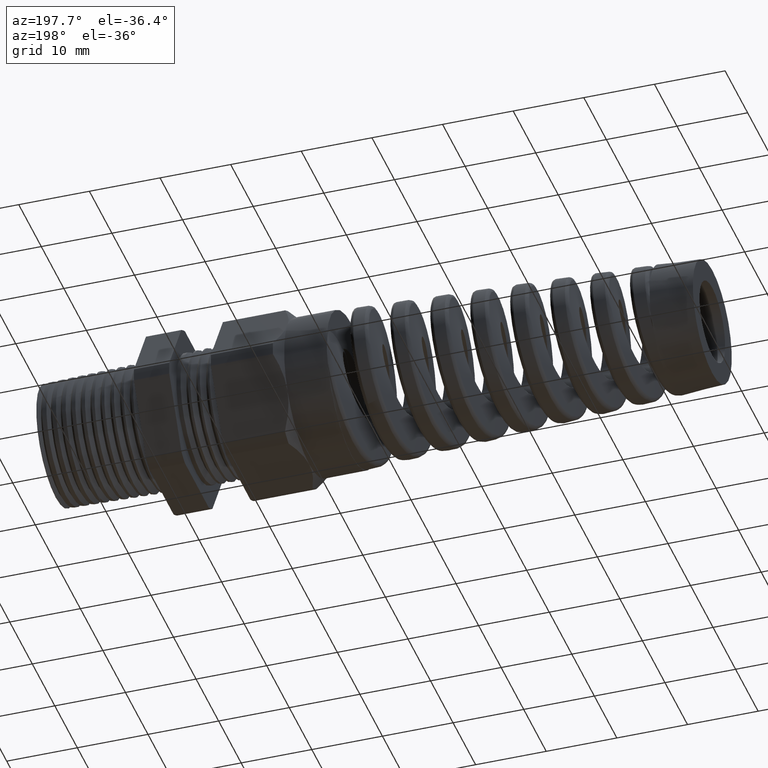
[diagram: clean part render]
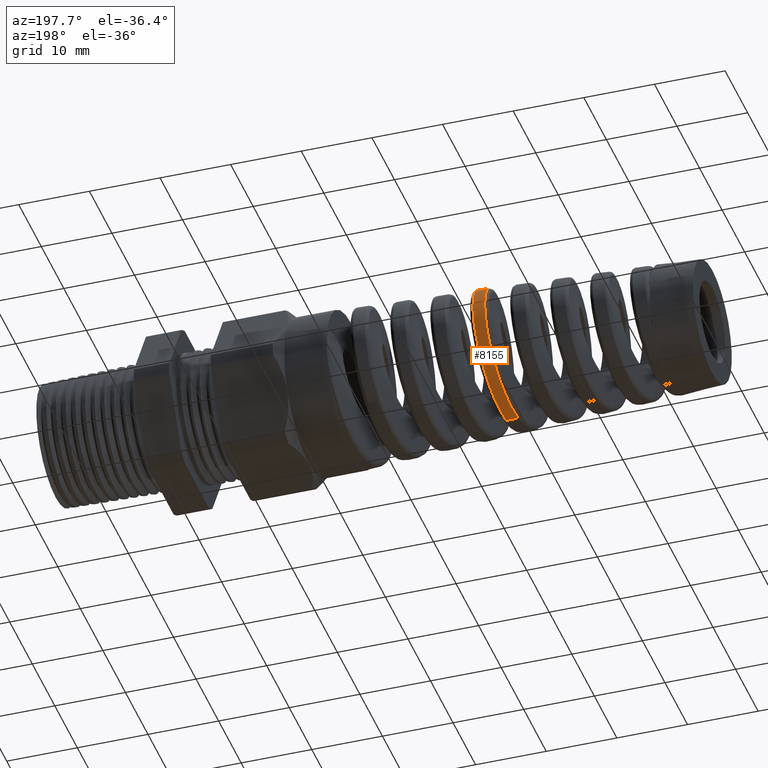
[diagram: same view with one face highlighted and labeled with its STEP entity id]
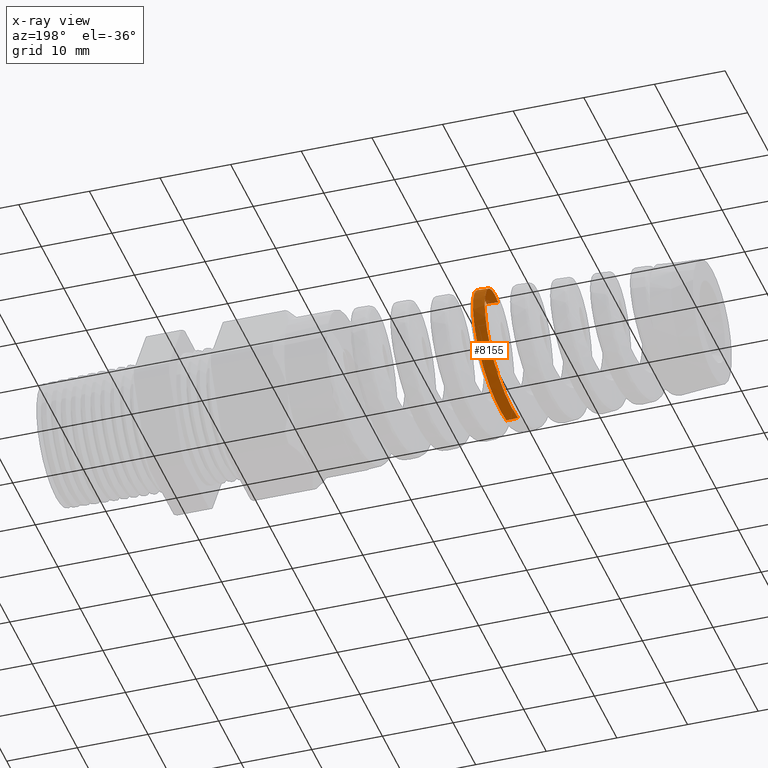
[diagram: x-ray of the same camera — body ghosted, the highlighted face saturated]
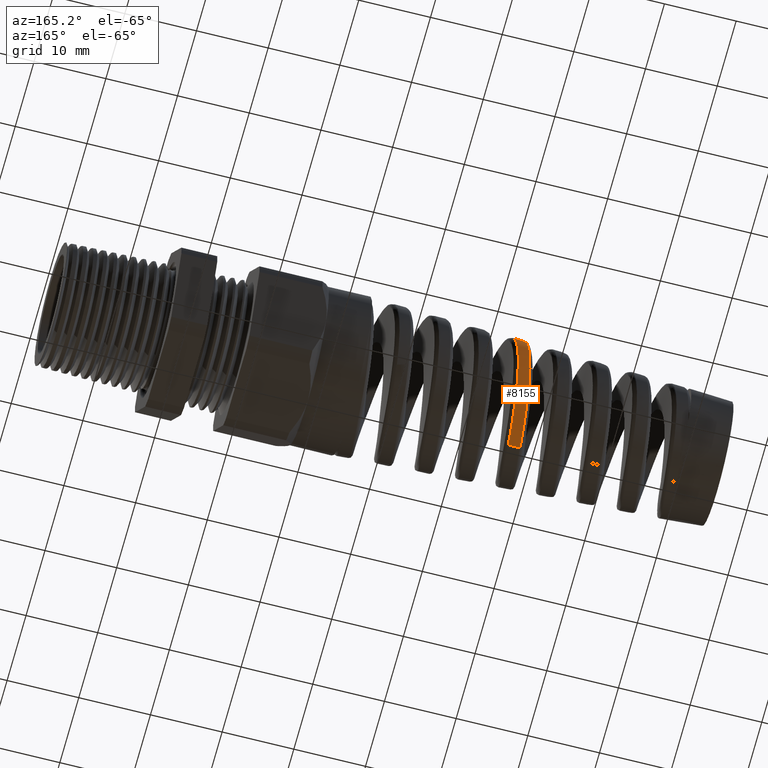
[diagram: same view with one face highlighted and labeled with its STEP entity id]
A machine part, auxiliary view. The second image highlights one B-rep face of the part: STEP entity #8155.
The next image is the same camera in x-ray: the body ghosted, the highlighted face saturated — about 1% of this face is hidden behind the body in this view.
A second angle (auxiliary view) of the same face is appended — the face is thin or edge-on in the first view.
In plain terms, the highlighted conical surface has half-angle 2.5 deg.
Its self-contained STEP definition (entity closure, byte-faithful):
#7662 = VERTEX_POINT ( 'NONE', #12962 ) ;
#8096 = EDGE_LOOP ( 'NONE', ( #8142, #8201, #8174, #8198 ) ) ;
#8130 = EDGE_CURVE ( 'NONE', #8200, #8202, #13267, .T. ) ;
#8142 = ORIENTED_EDGE ( 'NONE', *, *, #8130, .T. ) ;
#8155 = ADVANCED_FACE ( 'NONE', ( #13617 ), #13616, .T. ) ;
#8169 = EDGE_CURVE ( 'NONE', #7662, #8183, #13611, .T. ) ;
#8174 = ORIENTED_EDGE ( 'NONE', *, *, #8169, .T. ) ;
#8183 = VERTEX_POINT ( 'NONE', #13669 ) ;
#8196 = EDGE_CURVE ( 'NONE', #8200, #8183, #13758, .T. ) ;
#8198 = ORIENTED_EDGE ( 'NONE', *, *, #8196, .F. ) ;
#8199 = EDGE_CURVE ( 'NONE', #8202, #7662, #13752, .T. ) ;
#8200 = VERTEX_POINT ( 'NONE', #13744 ) ;
#8201 = ORIENTED_EDGE ( 'NONE', *, *, #8199, .T. ) ;
#8202 = VERTEX_POINT ( 'NONE', #13743 ) ;
#12556 = CARTESIAN_POINT ( 'NONE',  ( -2.218711898613962200, 0.3124359404254050700, 0.2411266693216077000 ) ) ;
#12565 = CARTESIAN_POINT ( 'NONE',  ( -2.215263172761423100, 0.2873479105716942300, 0.2707559511014985800 ) ) ;
#12567 = CARTESIAN_POINT ( 'NONE',  ( -2.216420544863168600, 0.2960990013734216000, 0.2610796868643477900 ) ) ;
#12962 = CARTESIAN_POINT ( 'NONE',  ( -2.122366238921869400, 5.250120604008313200E-016, 0.3986581051634590600 ) ) ;
#13208 = CARTESIAN_POINT ( 'NONE',  ( -2.219851730294393600, 0.3200712305407065700, 0.2308058865891631800 ) ) ;
#13210 = CARTESIAN_POINT ( 'NONE',  ( -2.223270518950673800, 0.3414059891660205500, 0.1988308275697723800 ) ) ;
#13212 = CARTESIAN_POINT ( 'NONE',  ( -2.225556401840262900, 0.3535829922662756000, 0.1760925164766052300 ) ) ;
#13214 = CARTESIAN_POINT ( 'NONE',  ( -2.230172989488114600, 0.3734285792878163600, 0.1281473726980491300 ) ) ;
#13215 = CARTESIAN_POINT ( 'NONE',  ( -2.232445229152284500, 0.3808528770545344700, 0.1035755372282390300 ) ) ;
#13217 = CARTESIAN_POINT ( 'NONE',  ( -2.235870684681607200, 0.3883671020513841400, 0.06585537510675232300 ) ) ;
#13219 = CARTESIAN_POINT ( 'NONE',  ( -2.237015191084879000, 0.3902637911740106700, 0.05313720074564734500 ) ) ;
#13221 = CARTESIAN_POINT ( 'NONE',  ( -2.239320207317864900, 0.3928093032770894600, 0.02740467981639881400 ) ) ;
#13222 = CARTESIAN_POINT ( 'NONE',  ( -2.240481034165525900, 0.3934489430777743900, 0.01438612606734760700 ) ) ;
#13224 = CARTESIAN_POINT ( 'NONE',  ( -2.243924901278260300, 0.3934464186544525700, -0.02425648264394815500 ) ) ;
#13226 = CARTESIAN_POINT ( 'NONE',  ( -2.246196496278318300, 0.3909385284510031900, -0.04975822684547734400 ) ) ;
#13228 = CARTESIAN_POINT ( 'NONE',  ( -2.249638625694578800, 0.3834287661512615400, -0.08761562778099550600 ) ) ;
#13229 = CARTESIAN_POINT ( 'NONE',  ( -2.250797366523134400, 0.3802772454878912100, -0.1002287961988097000 ) ) ;
#13231 = CARTESIAN_POINT ( 'NONE',  ( -2.253109921926512700, 0.3727570641786672200, -0.1250176186215716500 ) ) ;
#13233 = CARTESIAN_POINT ( 'NONE',  ( -2.254258268636419400, 0.3684132155581785200, -0.1371361231459839700 ) ) ;
#13235 = CARTESIAN_POINT ( 'NONE',  ( -2.257693975313719300, 0.3536804365441066400, -0.1726861999414699100 ) ) ;
#13236 = CARTESIAN_POINT ( 'NONE',  ( -2.259971346800738100, 0.3416063981636977600, -0.1953200435874973000 ) ) ;
#13238 = CARTESIAN_POINT ( 'NONE',  ( -2.263440883707351400, 0.3200200152779084100, -0.2276182391991529200 ) ) ;
#13240 = CARTESIAN_POINT ( 'NONE',  ( -2.264601693206377500, 0.3122641423936046700, -0.2380589539766222500 ) ) ;
#13242 = CARTESIAN_POINT ( 'NONE',  ( -2.266902308596235200, 0.2959226838140175400, -0.2579377735332169500 ) ) ;
#13243 = CARTESIAN_POINT ( 'NONE',  ( -2.268047966912378800, 0.2873013576472269700, -0.2674311113507659700 ) ) ;
#13245 = CARTESIAN_POINT ( 'NONE',  ( -2.270339610819941200, 0.2691692943944415900, -0.2855361053792814800 ) ) ;
#13247 = CARTESIAN_POINT ( 'NONE',  ( -2.271485227636867800, 0.2596585505250034200, -0.2941478015114886200 ) ) ;
#13249 = CARTESIAN_POINT ( 'NONE',  ( -2.273787987006378900, 0.2397338205439369100, -0.3104743852225730300 ) ) ;
#13250 = CARTESIAN_POINT ( 'NONE',  ( -2.274951727439308500, 0.2292576916530790500, -0.3182279439221034100 ) ) ;
#13252 = CARTESIAN_POINT ( 'NONE',  ( -2.278421131972630900, 0.1969694435823408100, -0.3397263317183430400 ) ) ;
#13254 = CARTESIAN_POINT ( 'NONE',  ( -2.280706118899019000, 0.1743257355562871600, -0.3517577132923852000 ) ) ;
#13256 = CARTESIAN_POINT ( 'NONE',  ( -2.285305284259304700, 0.1268560249212100400, -0.3713128228626805200 ) ) ;
#13257 = CARTESIAN_POINT ( 'NONE',  ( -2.287639245232431700, 0.1017664874360006500, -0.3788551871188889400 ) ) ;
#13259 = CARTESIAN_POINT ( 'NONE',  ( -2.292244006057723400, 0.05131066851734808500, -0.3887126561070445300 ) ) ;
#13261 = CARTESIAN_POINT ( 'NONE',  ( -2.294530783158848400, 0.02579760942298315800, -0.3911412388267123700 ) ) ;
#13263 = CARTESIAN_POINT ( 'NONE',  ( -2.296845494457832300, -8.211128333806607900E-013, -0.3910401763487836900 ) ) ;
#13267 = B_SPLINE_CURVE_WITH_KNOTS ( 'NONE', 3,
 ( #13263, #13261, #13259, #13257, #13256, #13254, #13252, #13250, #13249, #13247, #13245, #13243, #13242, #13240, #13238, #13236, #13235, #13233, #13231, #13229, #13228, #13226, #13224, #13222, #13221, #13219, #13217, #13215, #13214, #13212, #13210, #13208, #12556, #12567, #12565, #14225, #14245, #14246, #14252, #14254, #14253, #14243, #14244, #14247, #14248, #14250 ),
 .UNSPECIFIED., .F., .F.,
 ( 4, 2, 2, 2, 2, 2, 2, 2, 2, 2, 2, 2, 2, 2, 2, 2, 2, 2, 2, 2, 2, 2, 4 ),
 ( 0.2317423886301105700, 0.2337317438654726300, 0.2357210991008347200, 0.2377104543361967800, 0.2387051319538778200, 0.2396998095715588400, 0.2406944871892398900, 0.2416891648069209300, 0.2436785200422829900, 0.2446731976599640400, 0.2456678752776450800, 0.2476572305130071400, 0.2486519081306881900, 0.2496465857483692300, 0.2516359409837313200, 0.2536252962190934100, 0.2546199738367744300, 0.2556146514544555000, 0.2576040066898175300, 0.2595933619251796200, 0.2615827171605417100, 0.2625773947782227800, 0.2635720723959038000 ),
 .UNSPECIFIED. ) ;
#13591 = CARTESIAN_POINT ( 'NONE',  ( -2.164548996511191300, 0.3709832320427107800, 0.1414403306292197100 ) ) ;
#13592 = CARTESIAN_POINT ( 'NONE',  ( -2.161097387118590800, 0.3559614554532285500, 0.1776431330355807400 ) ) ;
#13593 = CARTESIAN_POINT ( 'NONE',  ( -2.158833017888307300, 0.3437389990298320700, 0.2004303281206778200 ) ) ;
#13594 = CARTESIAN_POINT ( 'NONE',  ( -2.155421150154700300, 0.3222097261999222800, 0.2326530290792326900 ) ) ;
#13595 = CARTESIAN_POINT ( 'NONE',  ( -2.154281486888260000, 0.3144968492341637100, 0.2430652392613244200 ) ) ;
#13596 = CARTESIAN_POINT ( 'NONE',  ( -2.151987108750868000, 0.2979709533655828200, 0.2632145350210029500 ) ) ;
#13597 = CARTESIAN_POINT ( 'NONE',  ( -2.150833004506669700, 0.2891543894346463900, 0.2729412833474752500 ) ) ;
#13598 = CARTESIAN_POINT ( 'NONE',  ( -2.147409854960353300, 0.2616313003985985000, 0.3004665195408015000 ) ) ;
#13599 = CARTESIAN_POINT ( 'NONE',  ( -2.145152739854297300, 0.2416835904644508100, 0.3168552048883903100 ) ) ;
#13600 = CARTESIAN_POINT ( 'NONE',  ( -2.141734611335054600, 0.2093769520579503400, 0.3385027072612429300 ) ) ;
#13601 = CARTESIAN_POINT ( 'NONE',  ( -2.140584220949266000, 0.1981501468502570900, 0.3452556774505081100 ) ) ;
#13602 = CARTESIAN_POINT ( 'NONE',  ( -2.138290162028017200, 0.1751507267131043900, 0.3575848108407784200 ) ) ;
#13603 = CARTESIAN_POINT ( 'NONE',  ( -2.137151428956919100, 0.1634316601891280300, 0.3631406170651423300 ) ) ;
#13604 = CARTESIAN_POINT ( 'NONE',  ( -2.133746264330185700, 0.1276362987574071700, 0.3780335812991945100 ) ) ;
#13605 = CARTESIAN_POINT ( 'NONE',  ( -2.131490258464495900, 0.1029278562166105600, 0.3856128760355928000 ) ) ;
#13606 = CARTESIAN_POINT ( 'NONE',  ( -2.128056332226393000, 0.06456905752915700900, 0.3933589393382874200 ) ) ;
#13607 = CARTESIAN_POINT ( 'NONE',  ( -2.126907345060618800, 0.05160882729078358100, 0.3953161563706631400 ) ) ;
#13608 = CARTESIAN_POINT ( 'NONE',  ( -2.124631395905219700, 0.02581092764626215900, 0.3979338266683871100 ) ) ;
#13609 = CARTESIAN_POINT ( 'NONE',  ( -2.123498548439923400, 0.01290748208527722900, 0.3986086674622366100 ) ) ;
#13610 = CARTESIAN_POINT ( 'NONE',  ( -2.122366238921869400, 5.250120604008313200E-016, 0.3986581051634590600 ) ) ;
#13611 = B_SPLINE_CURVE_WITH_KNOTS ( 'NONE', 3,
 ( #13610, #13609, #13608, #13607, #13606, #13605, #13604, #13603, #13602, #13601, #13600, #13599, #13598, #13597, #13596, #13595, #13594, #13593, #13592, #13591, #13662, #13661, #13660, #13659, #13658, #13657, #13656, #13655, #13654, #13653, #13652, #13651, #13650, #13649, #13648, #13647, #13646, #13645, #13644, #13643, #13642, #13641, #13640, #13639, #13637, #13636, #13635 ),
 .UNSPECIFIED., .F., .F.,
 ( 4, 2, 2, 2, 2, 2, 2, 2, 2, 2, 2, 1, 2, 2, 2, 2, 2, 2, 2, 2, 2, 2, 2, 4 ),
 ( 0.2297940208268349200, 0.2307944538146380900, 0.2317948868024412600, 0.2337957527780475900, 0.2347961857658507600, 0.2357966187536539300, 0.2377974847292602900, 0.2387979177170634600, 0.2397983507048666300, 0.2417992166804729900, 0.2427996496682761600, 0.2438000826560793300, 0.2448005156438825000, 0.2458009486316856700, 0.2478018146072920300, 0.2498026805828983700, 0.2518035465585047300, 0.2528039795463079000, 0.2538044125341110700, 0.2558052785097174000, 0.2578061444853238000, 0.2588065774731269600, 0.2598070104609301300, 0.2618078764365364700 ),
 .UNSPECIFIED. ) ;
#13612 = DIRECTION ( 'NONE',  ( 0.0000000000000000000, 0.0000000000000000000, -1.000000000000000000 ) ) ;
#13613 = DIRECTION ( 'NONE',  ( 1.000000000000000000, 0.0000000000000000000, 0.0000000000000000000 ) ) ;
#13614 = CARTESIAN_POINT ( 'NONE',  ( -1.289999999999999800, 0.0000000000000000000, 0.0000000000000000000 ) ) ;
#13615 = AXIS2_PLACEMENT_3D ( 'NONE', #13614, #13613, #13612 ) ;
#13616 = CONICAL_SURFACE ( 'NONE', #13615, 0.4350000000000000000, 0.04363323129985854900 ) ;
#13617 = FACE_OUTER_BOUND ( 'NONE', #8096, .T. ) ;
#13635 = CARTESIAN_POINT ( 'NONE',  ( -2.232202683197043000, 5.277990476742423500E-013, -0.3938625424406867500 ) ) ;
#13636 = CARTESIAN_POINT ( 'NONE',  ( -2.229902061102588400, 0.02592879894218318200, -0.3939629897705719300 ) ) ;
#13637 = CARTESIAN_POINT ( 'NONE',  ( -2.227621813457135100, 0.05163045303903183300, -0.3915266117271076800 ) ) ;
#13639 = CARTESIAN_POINT ( 'NONE',  ( -2.224167056167654100, 0.08983578998626452800, -0.3840600202322112000 ) ) ;
#13640 = CARTESIAN_POINT ( 'NONE',  ( -2.223003544540342400, 0.1025827128618699400, -0.3809077914363895900 ) ) ;
#13641 = CARTESIAN_POINT ( 'NONE',  ( -2.220693997087816100, 0.1275328904192907800, -0.3734017185755239600 ) ) ;
#13642 = CARTESIAN_POINT ( 'NONE',  ( -2.219547611299367500, 0.1397386772877906300, -0.3690571725012548600 ) ) ;
#13643 = CARTESIAN_POINT ( 'NONE',  ( -2.216114814626023700, 0.1755673241283244000, -0.3542950615626882500 ) ) ;
#13644 = CARTESIAN_POINT ( 'NONE',  ( -2.213834561252277400, 0.1984091033568394500, -0.3421657821658722900 ) ) ;
#13645 = CARTESIAN_POINT ( 'NONE',  ( -2.209201190369243700, 0.2419230142863243200, -0.3131717899589112100 ) ) ;
#13646 = CARTESIAN_POINT ( 'NONE',  ( -2.206912839002273400, 0.2619976131980390500, -0.2966860542891071000 ) ) ;
#13647 = CARTESIAN_POINT ( 'NONE',  ( -2.203487226861980700, 0.2893999100134285700, -0.2693162364152096300 ) ) ;
#13648 = CARTESIAN_POINT ( 'NONE',  ( -2.202344520468173500, 0.2980959157877121600, -0.2597383280237802200 ) ) ;
#13649 = CARTESIAN_POINT ( 'NONE',  ( -2.200045636035370800, 0.3145939701489164400, -0.2396563057553241800 ) ) ;
#13650 = CARTESIAN_POINT ( 'NONE',  ( -2.198883969696383600, 0.3224267643265317200, -0.2290979224256927700 ) ) ;
#13651 = CARTESIAN_POINT ( 'NONE',  ( -2.195432169779982800, 0.3440928011127566400, -0.1966509571793582400 ) ) ;
#13652 = CARTESIAN_POINT ( 'NONE',  ( -2.193159821210080900, 0.3562493258914530800, -0.1738672072062369100 ) ) ;
#13653 = CARTESIAN_POINT ( 'NONE',  ( -2.188587867224323100, 0.3760534043809487000, -0.1260364541692917700 ) ) ;
#13654 = CARTESIAN_POINT ( 'NONE',  ( -2.186268045428697800, 0.3837011436751577300, -0.1007694051346364900 ) ) ;
#13655 = CARTESIAN_POINT ( 'NONE',  ( -2.181696991724084700, 0.3937494335630396000, -0.05000475994008125900 ) ) ;
#13656 = CARTESIAN_POINT ( 'NONE',  ( -2.179426971287885100, 0.3962763187227737500, -0.02430135683764267400 ) ) ;
#13657 = CARTESIAN_POINT ( 'NONE',  ( -2.175984243134790700, 0.3962566914493801400, 0.01473811904012729300 ) ) ;
#13658 = CARTESIAN_POINT ( 'NONE',  ( -2.174826986836300600, 0.3956002096706595600, 0.02786491108632783300 ) ) ;
#13659 = CARTESIAN_POINT ( 'NONE',  ( -2.172536826819490700, 0.3930268734974127800, 0.05371342381048318400 ) ) ;
#13660 = CARTESIAN_POINT ( 'NONE',  ( -2.170258913180003200, 0.3892003404567574400, 0.07929459001151319100 ) ) ;
#13661 = CARTESIAN_POINT ( 'NONE',  ( -2.167983294331049700, 0.3829142104880080600, 0.1043490768029351500 ) ) ;
#13662 = CARTESIAN_POINT ( 'NONE',  ( -2.165699136248571600, 0.3753862605449823100, 0.1291367711152710000 ) ) ;
#13669 = CARTESIAN_POINT ( 'NONE',  ( -2.232202683197043000, 5.277990476742423500E-013, -0.3938625424406867500 ) ) ;
#13743 = CARTESIAN_POINT ( 'NONE',  ( -2.186678753362292200, 9.765731836090477900E-013, 0.3958501601421728900 ) ) ;
#13744 = CARTESIAN_POINT ( 'NONE',  ( -2.296845494457832300, -8.211128333806607900E-013, -0.3910401763487836900 ) ) ;
#13745 = DIRECTION ( 'NONE',  ( 0.9990482215818576900, 5.341834311772761800E-018, 0.04361938736533631200 ) ) ;
#13746 = VECTOR ( 'NONE', #13745, 39.37007874015748100 ) ;
#13747 = CARTESIAN_POINT ( 'NONE',  ( -1.289999999999999800, 5.327213576290986400E-017, 0.4350000000000000000 ) ) ;
#13752 = LINE ( 'NONE', #13747, #13746 ) ;
#13755 = DIRECTION ( 'NONE',  ( 0.9990482215818576900, 0.0000000000000000000, -0.04361938736533631200 ) ) ;
#13756 = VECTOR ( 'NONE', #13755, 39.37007874015748100 ) ;
#13757 = CARTESIAN_POINT ( 'NONE',  ( -1.289999999999999800, 0.0000000000000000000, -0.4350000000000000000 ) ) ;
#13758 = LINE ( 'NONE', #13757, #13756 ) ;
#14225 = CARTESIAN_POINT ( 'NONE',  ( -2.211822161840229400, 0.2599781615363915800, 0.2981741652934329400 ) ) ;
#14243 = CARTESIAN_POINT ( 'NONE',  ( -2.192401685884843400, 0.06432979322204557300, 0.3905452474354541600 ) ) ;
#14244 = CARTESIAN_POINT ( 'NONE',  ( -2.191263311987060800, 0.05162034242494614700, 0.3924809535406263400 ) ) ;
#14245 = CARTESIAN_POINT ( 'NONE',  ( -2.209554294409360700, 0.2401780981156435000, 0.3144546282323718600 ) ) ;
#14246 = CARTESIAN_POINT ( 'NONE',  ( -2.204992072583613600, 0.1975300730729162300, 0.3430837267399268200 ) ) ;
#14247 = CARTESIAN_POINT ( 'NONE',  ( -2.188972941895992500, 0.02590560292398751500, 0.3951126398342602000 ) ) ;
#14248 = CARTESIAN_POINT ( 'NONE',  ( -2.187819608150144200, 0.01288489469153683400, 0.3958003493463816400 ) ) ;
#14250 = CARTESIAN_POINT ( 'NONE',  ( -2.186678753362292200, 9.765731836090477900E-013, 0.3958501601421728900 ) ) ;
#14252 = CARTESIAN_POINT ( 'NONE',  ( -2.202681454365370300, 0.1744857840108516300, 0.3554893525548521400 ) ) ;
#14253 = CARTESIAN_POINT ( 'NONE',  ( -2.195812539941374400, 0.1020236333409042800, 0.3829232983005128000 ) ) ;
#14254 = CARTESIAN_POINT ( 'NONE',  ( -2.198079398159975600, 0.1265777901628731300, 0.3754395659360126900 ) ) ;